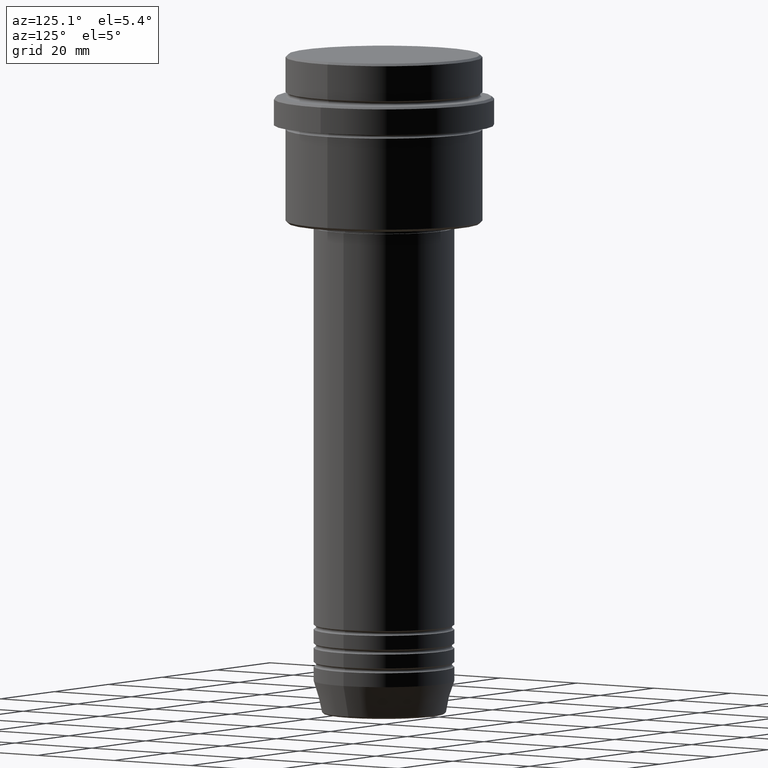
[diagram: clean part render]
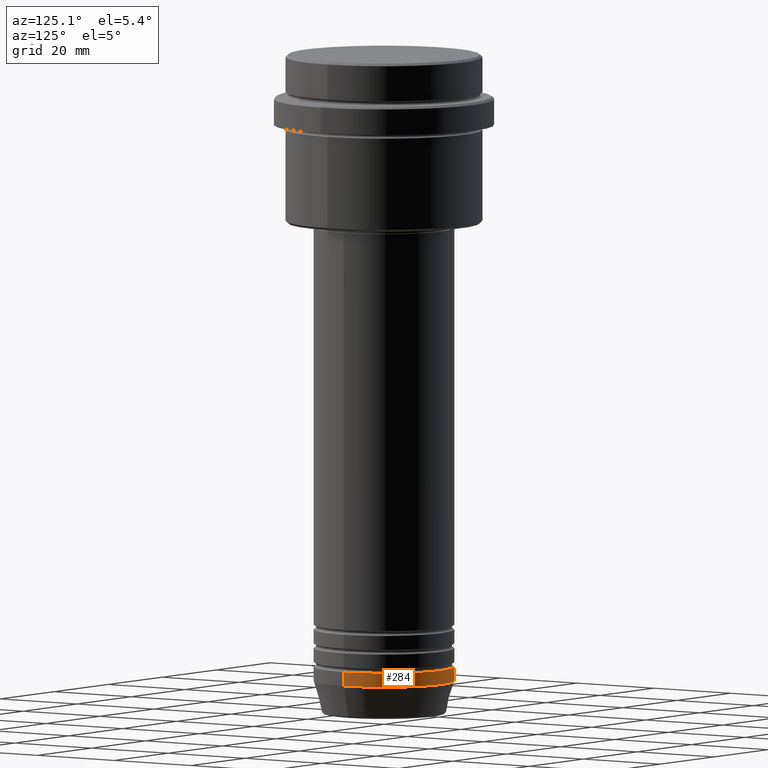
[diagram: same view with one face highlighted and labeled with its STEP entity id]
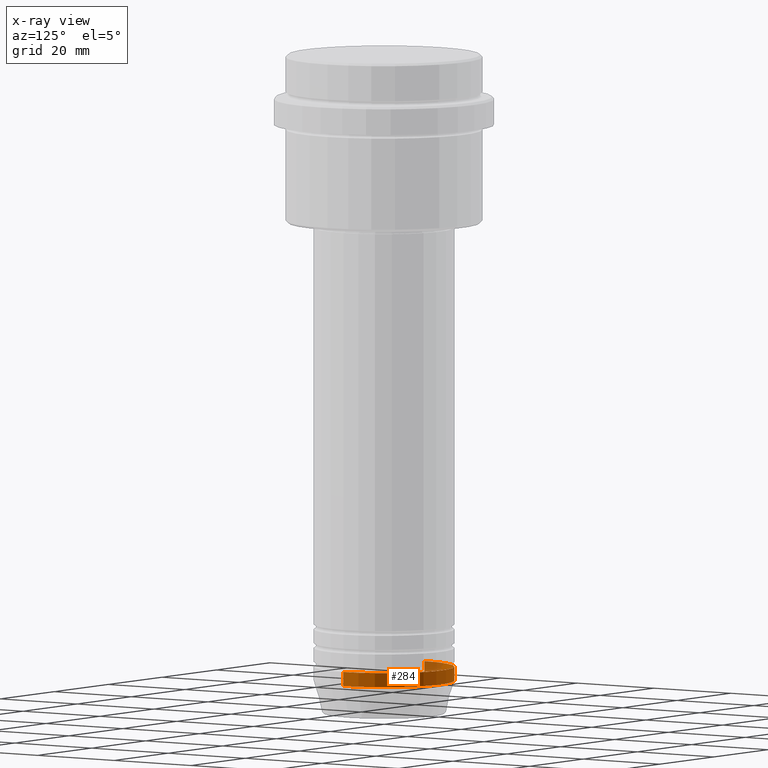
[diagram: x-ray of the same camera — body ghosted, the highlighted face saturated]
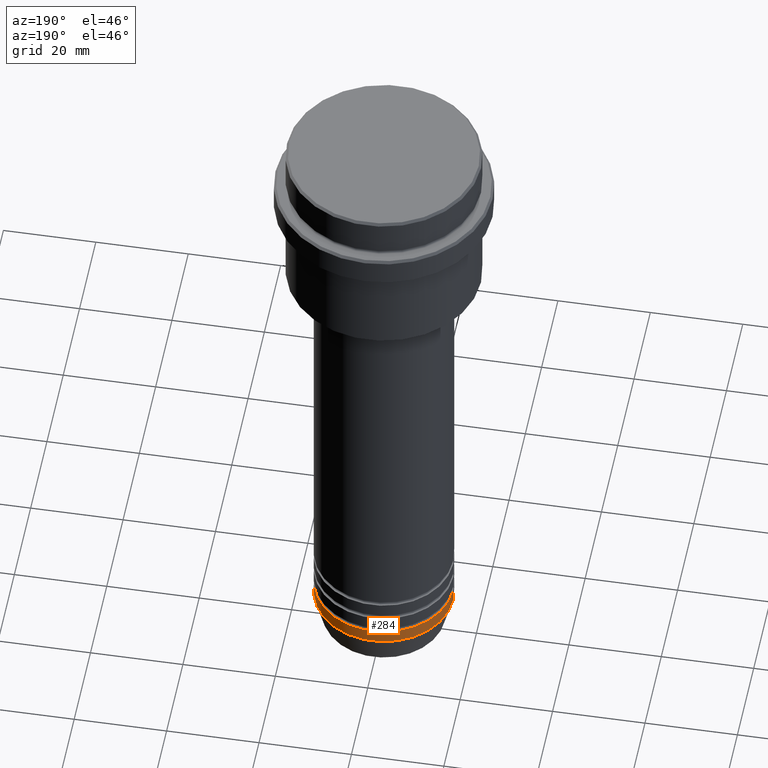
[diagram: same view with one face highlighted and labeled with its STEP entity id]
A machine part, auxiliary view. The second image highlights one B-rep face of the part: STEP entity #284.
The next image is the same camera in x-ray: the body ghosted, the highlighted face saturated — about 9% of this face is hidden behind the body in this view.
A second angle (auxiliary view) of the same face is appended — the face is thin or edge-on in the first view.
In plain terms, the highlighted cylindrical surface (partial cylindrical patch) has radius 15 mm, axis along (-0, -0, 1).
Its self-contained STEP definition (entity closure, byte-faithful):
#12 = CARTESIAN_POINT ( 'NONE',  ( 15.00000000000000000, 0.000000000000000000, -130.9999999999999716 ) ) ;
#39 = LINE ( 'NONE', #911, #1243 ) ;
#44 = CARTESIAN_POINT ( 'NONE',  ( 0.000000000000000000, 0.000000000000000000, -130.9999999999999716 ) ) ;
#53 = ORIENTED_EDGE ( 'NONE', *, *, #1333, .F. ) ;
#62 = DIRECTION ( 'NONE',  ( -0.000000000000000000, -0.000000000000000000, 1.000000000000000000 ) ) ;
#64 = DIRECTION ( 'NONE',  ( 1.000000000000000000, 0.000000000000000000, 0.000000000000000000 ) ) ;
#147 = DIRECTION ( 'NONE',  ( 1.000000000000000000, 0.000000000000000000, 0.000000000000000000 ) ) ;
#151 = VERTEX_POINT ( 'NONE', #12 ) ;
#162 = DIRECTION ( 'NONE',  ( -0.000000000000000000, -0.000000000000000000, 1.000000000000000000 ) ) ;
#196 = CARTESIAN_POINT ( 'NONE',  ( 0.000000000000000000, 0.000000000000000000, 0.000000000000000000 ) ) ;
#213 = AXIS2_PLACEMENT_3D ( 'NONE', #196, #62, #398 ) ;
#280 = AXIS2_PLACEMENT_3D ( 'NONE', #929, #162, #64 ) ;
#284 = ADVANCED_FACE ( 'NONE', ( #531 ), #967, .T. ) ;
#308 = CARTESIAN_POINT ( 'NONE',  ( 15.00000000000000000, 0.000000000000000000, -133.9999999999999716 ) ) ;
#356 = VERTEX_POINT ( 'NONE', #308 ) ;
#362 = EDGE_CURVE ( 'NONE', #966, #647, #953, .T. ) ;
#373 = CIRCLE ( 'NONE', #1176, 15.00000000000000000 ) ;
#398 = DIRECTION ( 'NONE',  ( 1.000000000000000000, 0.000000000000000000, 0.000000000000000000 ) ) ;
#435 = CARTESIAN_POINT ( 'NONE',  ( -15.00000000000000000, 1.836970198721029589E-15, -133.9999999999999716 ) ) ;
#447 = VECTOR ( 'NONE', #979, 1000.000000000000000 ) ;
#530 = ORIENTED_EDGE ( 'NONE', *, *, #1336, .F. ) ;
#531 = FACE_OUTER_BOUND ( 'NONE', #1010, .T. ) ;
#546 = CIRCLE ( 'NONE', #280, 15.00000000000000000 ) ;
#647 = VERTEX_POINT ( 'NONE', #798 ) ;
#703 = DIRECTION ( 'NONE',  ( -0.000000000000000000, -0.000000000000000000, 1.000000000000000000 ) ) ;
#798 = CARTESIAN_POINT ( 'NONE',  ( -15.00000000000000000, 1.836970198721029589E-15, -130.9999999999999716 ) ) ;
#911 = CARTESIAN_POINT ( 'NONE',  ( 15.00000000000000000, 0.000000000000000000, 0.000000000000000000 ) ) ;
#916 = DIRECTION ( 'NONE',  ( -0.000000000000000000, -0.000000000000000000, 1.000000000000000000 ) ) ;
#929 = CARTESIAN_POINT ( 'NONE',  ( 0.000000000000000000, 0.000000000000000000, -133.9999999999999716 ) ) ;
#935 = ORIENTED_EDGE ( 'NONE', *, *, #1144, .T. ) ;
#953 = LINE ( 'NONE', #1084, #447 ) ;
#966 = VERTEX_POINT ( 'NONE', #435 ) ;
#967 = CYLINDRICAL_SURFACE ( 'NONE', #213, 15.00000000000000000 ) ;
#979 = DIRECTION ( 'NONE',  ( -0.000000000000000000, -0.000000000000000000, 1.000000000000000000 ) ) ;
#1010 = EDGE_LOOP ( 'NONE', ( #935, #1102, #530, #53 ) ) ;
#1084 = CARTESIAN_POINT ( 'NONE',  ( -15.00000000000000000, 1.836970198721029589E-15, 0.000000000000000000 ) ) ;
#1102 = ORIENTED_EDGE ( 'NONE', *, *, #362, .T. ) ;
#1144 = EDGE_CURVE ( 'NONE', #356, #966, #546, .T. ) ;
#1176 = AXIS2_PLACEMENT_3D ( 'NONE', #44, #916, #147 ) ;
#1243 = VECTOR ( 'NONE', #703, 1000.000000000000000 ) ;
#1333 = EDGE_CURVE ( 'NONE', #356, #151, #39, .T. ) ;
#1336 = EDGE_CURVE ( 'NONE', #151, #647, #373, .T. ) ;